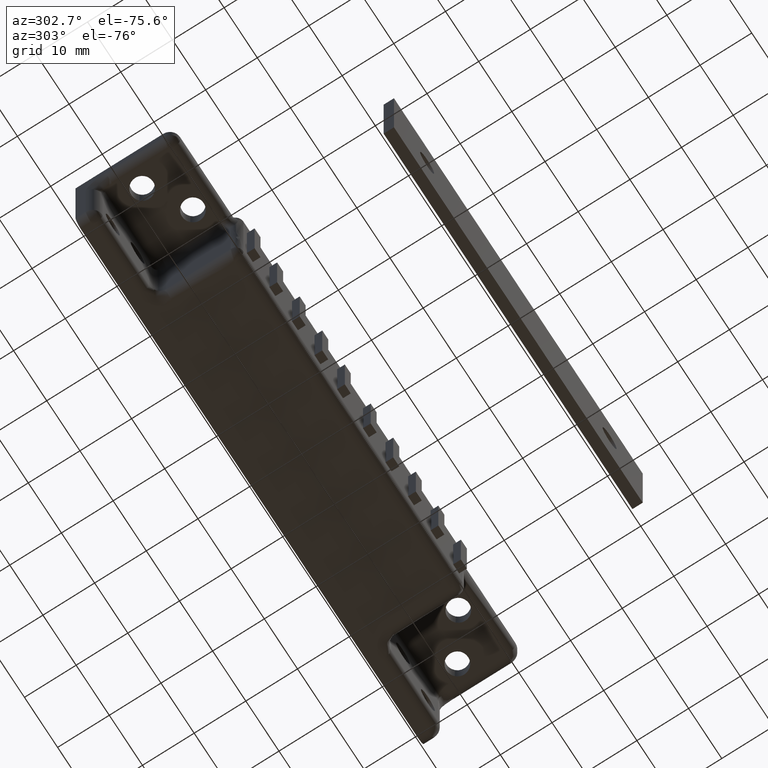
[diagram: clean part render]
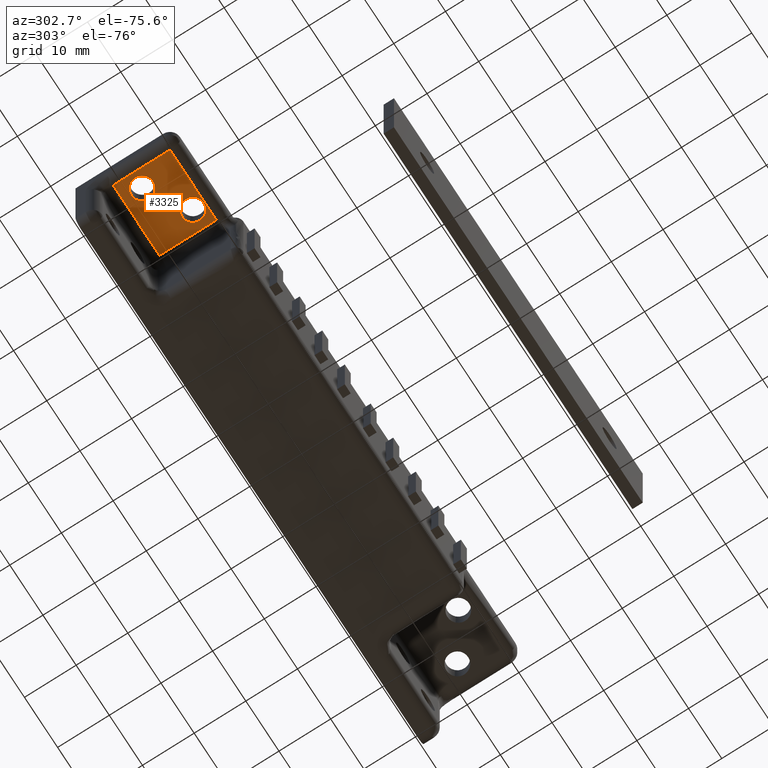
[diagram: same view with one face highlighted and labeled with its STEP entity id]
A machine part, auxiliary view. The second image highlights one B-rep face of the part: STEP entity #3325.
In plain terms, the highlighted face is a freeform B-spline surface patch.
Its self-contained STEP definition (entity closure, byte-faithful):
#23=CARTESIAN_POINT('',(-46.002173943474311,-8.228090680302065,6.700000000041047));
#24=VERTEX_POINT('',#23);
#25=CARTESIAN_POINT('',(-45.400000000000013,-9.700000000000001,6.700000000041230));
#26=VERTEX_POINT('',#25);
#27=CARTESIAN_POINT('',(-46.002173943474311,-8.228090680302065,6.700000000041047));
#28=CARTESIAN_POINT('',(-45.823369338556013,-8.409730952755025,6.700000000041071));
#29=CARTESIAN_POINT('',(-45.514113543223402,-8.867803560793735,6.700000000041114));
#30=CARTESIAN_POINT('',(-45.399620724050230,-9.411116236635467,6.700000000041206));
#31=CARTESIAN_POINT('',(-45.400000000000013,-9.700000000000001,6.700000000041230));
#32=B_SPLINE_CURVE_WITH_KNOTS('',3,(#27,#28,#29,#30,#31),.UNSPECIFIED.,.F.,.U.,(4,1,4),(0.000000049682273,0.764567028588040,1.631050028492874),.UNSPECIFIED.);
#33=EDGE_CURVE('',#24,#26,#32,.T.);
#35=CARTESIAN_POINT('',(-47.499999943820953,-11.800000000000001,6.700000000041229));
#36=VERTEX_POINT('',#35);
#37=CARTESIAN_POINT('',(-45.400000000000013,-9.700000000000001,6.700000000041230));
#38=CARTESIAN_POINT('',(-45.399496146354259,-10.009366724165391,6.700000000041227));
#39=CARTESIAN_POINT('',(-45.504435777985620,-10.472753091869480,6.700000000041245));
#40=CARTESIAN_POINT('',(-45.867174033102877,-11.061476638608459,6.700000000041214));
#41=CARTESIAN_POINT('',(-46.262351176828602,-11.428544946936800,6.700000000041237));
#42=CARTESIAN_POINT('',(-46.830095804452000,-11.723090898505561,6.700000000041221));
#43=CARTESIAN_POINT('',(-47.242255239482020,-11.800230978627690,6.700000000041229));
#44=CARTESIAN_POINT('',(-47.499999943820953,-11.800000000000001,6.700000000041229));
#45=B_SPLINE_CURVE_WITH_KNOTS('',3,(#37,#38,#39,#40,#41,#42,#43,#44),.UNSPECIFIED.,.F.,.U.,(4,1,1,1,1,4),(0.000000181143225,0.927781601237180,1.391685570888366,2.061698216376350,2.525610895241246,3.298755031449602),.UNSPECIFIED.);
#46=EDGE_CURVE('',#26,#36,#45,.T.);
#48=CARTESIAN_POINT('',(-48.997826056525703,-11.171909319697940,6.700000000041047));
#49=VERTEX_POINT('',#48);
#50=CARTESIAN_POINT('',(-47.499999943820953,-11.800000000000001,6.700000000041229));
#51=CARTESIAN_POINT('',(-47.760612745987920,-11.800238677908130,6.700000000041198));
#52=CARTESIAN_POINT('',(-48.316286127360563,-11.695110588660039,6.700000000041133));
#53=CARTESIAN_POINT('',(-48.791086809470130,-11.382880072098359,6.700000000041070));
#54=CARTESIAN_POINT('',(-48.997826056525703,-11.171909319697940,6.700000000041047));
#55=B_SPLINE_CURVE_WITH_KNOTS('',3,(#50,#51,#52,#53,#54),.UNSPECIFIED.,.F.,.U.,(4,1,4),(0.000000055474993,0.781749935964478,1.667705109630777),.UNSPECIFIED.);
#56=EDGE_CURVE('',#36,#49,#55,.T.);
#125=CARTESIAN_POINT('',(-47.500000056179061,-7.600000000000001,6.700000000041229));
#126=VERTEX_POINT('',#125);
#127=CARTESIAN_POINT('',(-47.500000056179061,-7.600000000000001,6.700000000041229));
#128=CARTESIAN_POINT('',(-47.239390467131059,-7.599760143424492,6.700000000041199));
#129=CARTESIAN_POINT('',(-46.683708115725452,-7.704896475647258,6.700000000041133));
#130=CARTESIAN_POINT('',(-46.208909071587442,-8.017106990743294,6.700000000041071));
#131=CARTESIAN_POINT('',(-46.002173943474311,-8.228090680302065,6.700000000041047));
#132=B_SPLINE_CURVE_WITH_KNOTS('',3,(#127,#128,#129,#130,#131),.UNSPECIFIED.,.F.,.U.,(4,1,4),(0.000000055475972,0.781749935964514,1.667705109630788),.UNSPECIFIED.);
#133=EDGE_CURVE('',#126,#24,#132,.T.);
#169=CARTESIAN_POINT('',(-49.600000000000001,-9.700000000000001,6.700000000041230));
#170=VERTEX_POINT('',#169);
#171=CARTESIAN_POINT('',(-48.997826056525703,-11.171909319697940,6.700000000041047));
#172=CARTESIAN_POINT('',(-49.200564323549713,-10.966125946217060,6.700000000041064));
#173=CARTESIAN_POINT('',(-49.499766831138913,-10.498369447815939,6.700000000041153));
#174=CARTESIAN_POINT('',(-49.600194234167482,-9.954876290416346,6.700000000041190));
#175=CARTESIAN_POINT('',(-49.600000000000001,-9.700000000000001,6.700000000041230));
#176=B_SPLINE_CURVE_WITH_KNOTS('',3,(#171,#172,#173,#174,#175),.UNSPECIFIED.,.F.,.U.,(4,1,4),(0.000000049681578,0.866483049586555,1.631050028492881),.UNSPECIFIED.);
#177=EDGE_CURVE('',#49,#170,#176,.T.);
#179=CARTESIAN_POINT('',(-49.600000000000001,-9.700000000000001,6.700000000041230));
#180=CARTESIAN_POINT('',(-49.600293410362440,-9.425075442577276,6.700000000041233));
#181=CARTESIAN_POINT('',(-49.500730451189057,-8.927023181314924,6.700000000041236));
#182=CARTESIAN_POINT('',(-49.153850209262188,-8.364139401983683,6.700000000041227));
#183=CARTESIAN_POINT('',(-48.735845987123049,-7.975947834320724,6.700000000041225));
#184=CARTESIAN_POINT('',(-48.204280398949201,-7.683284796318268,6.700000000041235));
#185=CARTESIAN_POINT('',(-47.757735116598582,-7.599784428592172,6.700000000041232));
#186=CARTESIAN_POINT('',(-47.500000056179061,-7.600000000000001,6.700000000041229));
#187=B_SPLINE_CURVE_WITH_KNOTS('',3,(#179,#180,#181,#182,#183,#184,#185,#186),.UNSPECIFIED.,.F.,.U.,(4,1,1,1,1,4),(0.000000181138867,0.824690623533780,1.494784162828055,1.958628687314367,2.525610895240759,3.298755031449598),.UNSPECIFIED.);
#188=EDGE_CURVE('',#170,#126,#187,.T.);
#211=CARTESIAN_POINT('',(-38.502173943474311,-13.228090680302060,6.700000000041047));
#212=VERTEX_POINT('',#211);
#213=CARTESIAN_POINT('',(-37.900000000000013,-14.699999999999999,6.700000000041230));
#214=VERTEX_POINT('',#213);
#215=CARTESIAN_POINT('',(-38.502173943474311,-13.228090680302060,6.700000000041047));
#216=CARTESIAN_POINT('',(-38.323378967222403,-13.409733992844499,6.700000000041071));
#217=CARTESIAN_POINT('',(-38.014070783739768,-13.867790752810480,6.700000000041126));
#218=CARTESIAN_POINT('',(-37.899656864886232,-14.411124295062550,6.700000000041190));
#219=CARTESIAN_POINT('',(-37.900000000000013,-14.699999999999999,6.700000000041230));
#220=B_SPLINE_CURVE_WITH_KNOTS('',3,(#215,#216,#217,#218,#219),.UNSPECIFIED.,.F.,.U.,(4,1,4),(0.000000049681577,0.764567028587712,1.631050028492875),.UNSPECIFIED.);
#221=EDGE_CURVE('',#212,#214,#220,.T.);
#223=CARTESIAN_POINT('',(-39.999999943820953,-16.800000000000001,6.700000000041230));
#224=VERTEX_POINT('',#223);
#225=CARTESIAN_POINT('',(-37.900000000000013,-14.699999999999999,6.700000000041230));
#226=CARTESIAN_POINT('',(-37.899748833487209,-14.974933966860879,6.700000000041228));
#227=CARTESIAN_POINT('',(-37.985543382627817,-15.404224415498410,6.700000000041234));
#228=CARTESIAN_POINT('',(-38.260747908732647,-15.903910538822400,6.700000000041231));
#229=CARTESIAN_POINT('',(-38.587687926684652,-16.283048311590541,6.700000000041222));
#230=CARTESIAN_POINT('',(-39.027852108609103,-16.593115835270488,6.700000000041253));
#231=CARTESIAN_POINT('',(-39.536126168308833,-16.767869818672981,6.700000000041190));
#232=CARTESIAN_POINT('',(-39.862564575972662,-16.800011639152320,6.700000000041278));
#233=CARTESIAN_POINT('',(-39.999999943820953,-16.800000000000001,6.700000000041230));
#234=B_SPLINE_CURVE_WITH_KNOTS('',3,(#225,#226,#227,#228,#229,#230,#231,#232,#233),.UNSPECIFIED.,.F.,.U.,(4,1,1,1,1,1,4),(0.000000181139952,0.824690623534730,1.288584627139889,1.700896312039702,2.319428157186813,2.886434522007022,3.298755031449615),.UNSPECIFIED.);
#235=EDGE_CURVE('',#214,#224,#234,.T.);
#237=CARTESIAN_POINT('',(-41.497826056525703,-16.171909319697939,6.700000000041049));
#238=VERTEX_POINT('',#237);
#239=CARTESIAN_POINT('',(-39.999999943820953,-16.800000000000001,6.700000000041230));
#240=CARTESIAN_POINT('',(-40.295370620446853,-16.800373176807529,6.700000000041198));
#241=CARTESIAN_POINT('',(-40.850885497076440,-16.680654007302952,6.700000000041120));
#242=CARTESIAN_POINT('',(-41.315327065472843,-16.357948496871419,6.700000000041076));
#243=CARTESIAN_POINT('',(-41.497826056525703,-16.171909319697939,6.700000000041049));
#244=B_SPLINE_CURVE_WITH_KNOTS('',3,(#239,#240,#241,#242,#243),.UNSPECIFIED.,.F.,.U.,(4,1,4),(0.000000055475260,0.885955229141630,1.667705109630777),.UNSPECIFIED.);
#245=EDGE_CURVE('',#224,#238,#244,.T.);
#314=CARTESIAN_POINT('',(-40.000000056179047,-12.600000000000000,6.700000000041229));
#315=VERTEX_POINT('',#314);
#316=CARTESIAN_POINT('',(-40.000000056179047,-12.600000000000000,6.700000000041229));
#317=CARTESIAN_POINT('',(-39.704629095433248,-12.599627954280750,6.700000000041192));
#318=CARTESIAN_POINT('',(-39.149114959434257,-12.719343897542110,6.700000000041141));
#319=CARTESIAN_POINT('',(-38.684672123545852,-13.042052155187170,6.700000000041057));
#320=CARTESIAN_POINT('',(-38.502173943474311,-13.228090680302060,6.700000000041047));
#321=B_SPLINE_CURVE_WITH_KNOTS('',3,(#316,#317,#318,#319,#320),.UNSPECIFIED.,.F.,.U.,(4,1,4),(0.000000055475395,0.885955229141366,1.667705109630772),.UNSPECIFIED.);
#322=EDGE_CURVE('',#315,#212,#321,.T.);
#360=CARTESIAN_POINT('',(-42.100000000000001,-14.699999999999999,6.700000000041230));
#361=VERTEX_POINT('',#360);
#362=CARTESIAN_POINT('',(-41.497826056525703,-16.171909319697939,6.700000000041049));
#363=CARTESIAN_POINT('',(-41.628867341749363,-16.038651686817740,6.700000000041057));
#364=CARTESIAN_POINT('',(-41.824100361478934,-15.777982561191131,6.700000000041102));
#365=CARTESIAN_POINT('',(-42.043160179654571,-15.277584623885049,6.700000000041163));
#366=CARTESIAN_POINT('',(-42.100127560280811,-14.920889751979979,6.700000000041197));
#367=CARTESIAN_POINT('',(-42.100000000000001,-14.699999999999999,6.700000000041230));
#368=B_SPLINE_CURVE_WITH_KNOTS('',3,(#362,#363,#364,#365,#366,#367),.UNSPECIFIED.,.F.,.U.,(4,1,1,4),(0.000000049682113,0.560675453175539,0.968422021058297,1.631050028492875),.UNSPECIFIED.);
#369=EDGE_CURVE('',#238,#361,#368,.T.);
#371=CARTESIAN_POINT('',(-42.100000000000001,-14.699999999999999,6.700000000041230));
#372=CARTESIAN_POINT('',(-42.100070265742943,-14.511008602487710,6.700000000041241));
#373=CARTESIAN_POINT('',(-42.050938706385047,-14.150268122002380,6.700000000041221));
#374=CARTESIAN_POINT('',(-41.812645223277841,-13.574401827368570,6.700000000041233));
#375=CARTESIAN_POINT('',(-41.407671348374009,-13.093134800034930,6.700000000041237));
#376=CARTESIAN_POINT('',(-40.772849504833381,-12.702090551965460,6.700000000041220));
#377=CARTESIAN_POINT('',(-40.292142370614137,-12.599605878592110,6.700000000041257));
#378=CARTESIAN_POINT('',(-40.000000056179047,-12.600000000000000,6.700000000041229));
#379=B_SPLINE_CURVE_WITH_KNOTS('',3,(#371,#372,#373,#374,#375,#376,#377,#378),.UNSPECIFIED.,.F.,.U.,(4,1,1,1,1,4),(0.000000181141816,0.566959838506693,1.082416058266808,1.855520375933721,2.422521843111968,3.298755031449591),.UNSPECIFIED.);
#380=EDGE_CURVE('',#361,#315,#379,.T.);
#2967=CARTESIAN_POINT('',(-36.500000000000000,-5.999999999999890,6.700000000041200));
#2968=VERTEX_POINT('',#2967);
#2981=CARTESIAN_POINT('',(-50.500000000325308,-5.999999999999920,6.700000000041200));
#2982=VERTEX_POINT('',#2981);
#2983=CARTESIAN_POINT('',(-50.500000000325308,-5.999999999999920,6.700000000041200));
#2984=CARTESIAN_POINT('',(-36.500000000000000,-5.999999999999890,6.700000000041200));
#2985=QUASI_UNIFORM_CURVE('',1,(#2983,#2984),.UNSPECIFIED.,.F.,.U.);
#2986=EDGE_CURVE('',#2982,#2968,#2985,.T.);
#3282=CARTESIAN_POINT('',(-51.199299973206848,-17.549449978679871,6.700000000041200));
#3283=CARTESIAN_POINT('',(-35.800699651609200,-17.549449978679871,6.700000000041200));
#3284=CARTESIAN_POINT('',(-51.199299973206848,-5.450549726277027,6.700000000041200));
#3285=CARTESIAN_POINT('',(-35.800699651609200,-5.450549726277027,6.700000000041200));
#3286=B_SPLINE_SURFACE_WITH_KNOTS('',1,1,((#3282,#3284),(#3283,#3285)),.UNSPECIFIED.,.F.,.F.,.U.,(2,2),(2,2),(0.0,15.398600321597650),(0.0,12.098900252402840),.UNSPECIFIED.);
#3287=ORIENTED_EDGE('',*,*,#2986,.T.);
#3288=CARTESIAN_POINT('',(-36.500000000000000,-17.0,6.700000000041200));
#3289=VERTEX_POINT('',#3288);
#3290=CARTESIAN_POINT('',(-36.500000000000000,-5.999999999999890,6.700000000041200));
#3291=CARTESIAN_POINT('',(-36.500000000000000,-17.0,6.700000000041200));
#3292=QUASI_UNIFORM_CURVE('',1,(#3290,#3291),.UNSPECIFIED.,.F.,.U.);
#3293=EDGE_CURVE('',#2968,#3289,#3292,.T.);
#3294=ORIENTED_EDGE('',*,*,#3293,.T.);
#3295=CARTESIAN_POINT('',(-50.500000000325308,-17.0,6.700000000041200));
#3296=VERTEX_POINT('',#3295);
#3297=CARTESIAN_POINT('',(-36.500000000000000,-17.0,6.700000000041200));
#3298=CARTESIAN_POINT('',(-50.500000000325308,-17.0,6.700000000041200));
#3299=QUASI_UNIFORM_CURVE('',1,(#3297,#3298),.UNSPECIFIED.,.F.,.U.);
#3300=EDGE_CURVE('',#3289,#3296,#3299,.T.);
#3301=ORIENTED_EDGE('',*,*,#3300,.T.);
#3302=CARTESIAN_POINT('',(-50.500000000325308,-17.0,6.700000000041200));
#3303=CARTESIAN_POINT('',(-50.500000000325308,-5.999999999999920,6.700000000041200));
#3304=QUASI_UNIFORM_CURVE('',1,(#3302,#3303),.UNSPECIFIED.,.F.,.U.);
#3305=EDGE_CURVE('',#3296,#2982,#3304,.T.);
#3306=ORIENTED_EDGE('',*,*,#3305,.T.);
#3307=EDGE_LOOP('',(#3287,#3294,#3301,#3306));
#3308=FACE_OUTER_BOUND('',#3307,.T.);
#3309=ORIENTED_EDGE('',*,*,#235,.F.);
#3310=ORIENTED_EDGE('',*,*,#221,.F.);
#3311=ORIENTED_EDGE('',*,*,#322,.F.);
#3312=ORIENTED_EDGE('',*,*,#380,.F.);
#3313=ORIENTED_EDGE('',*,*,#369,.F.);
#3314=ORIENTED_EDGE('',*,*,#245,.F.);
#3315=EDGE_LOOP('',(#3309,#3310,#3311,#3312,#3313,#3314));
#3316=FACE_BOUND('',#3315,.T.);
#3317=ORIENTED_EDGE('',*,*,#46,.F.);
#3318=ORIENTED_EDGE('',*,*,#33,.F.);
#3319=ORIENTED_EDGE('',*,*,#133,.F.);
#3320=ORIENTED_EDGE('',*,*,#188,.F.);
#3321=ORIENTED_EDGE('',*,*,#177,.F.);
#3322=ORIENTED_EDGE('',*,*,#56,.F.);
#3323=EDGE_LOOP('',(#3317,#3318,#3319,#3320,#3321,#3322));
#3324=FACE_BOUND('',#3323,.T.);
#3325=ADVANCED_FACE('',(#3308,#3316,#3324),#3286,.F.);